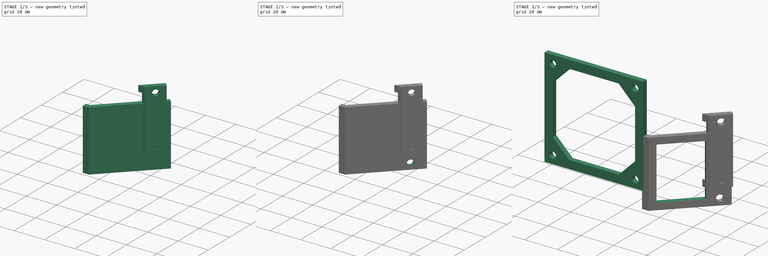
[diagram: build sequence overview — one tinted view per stage of 3, left to right]
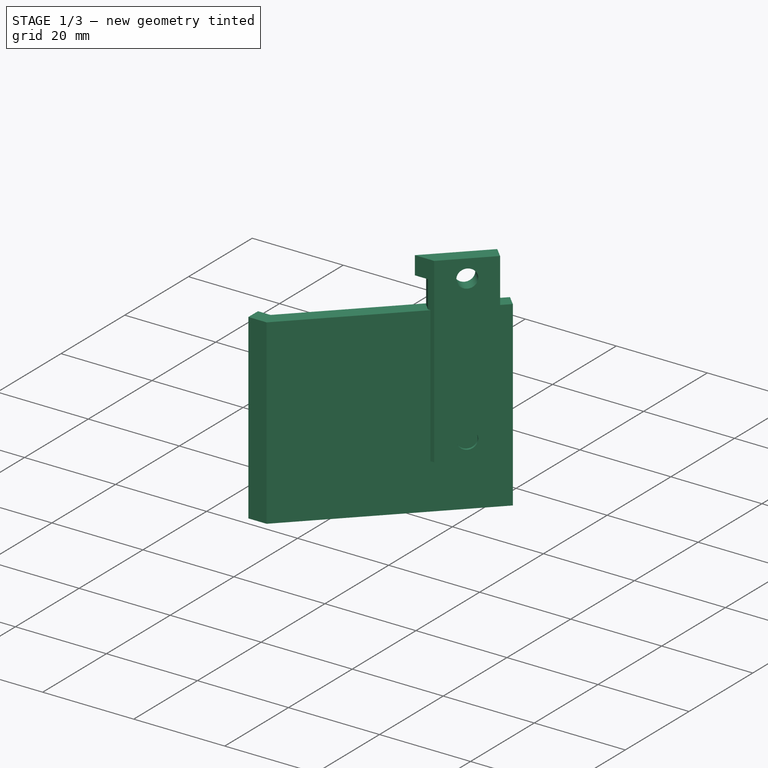
[diagram: stage 1 of 3 — iso view after this stage's code; geometry added in this stage tinted green]
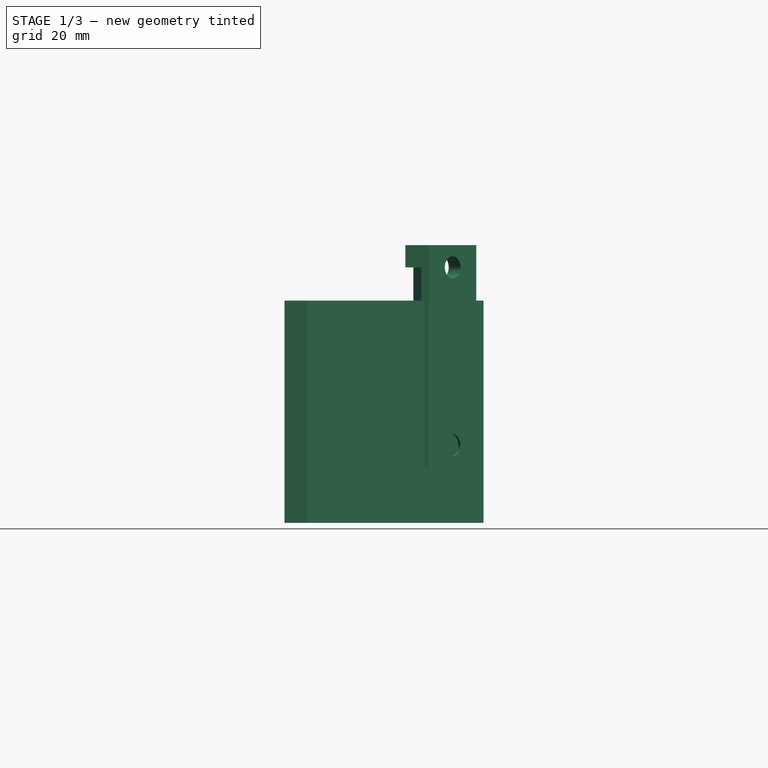
[diagram: stage 1 of 3 — front view after this stage's code; geometry added in this stage tinted green]
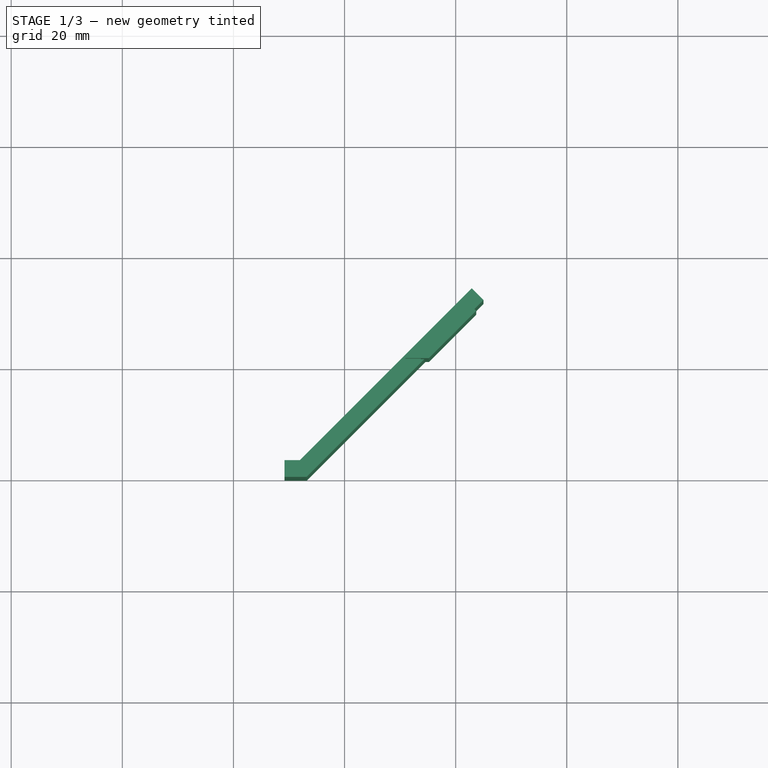
[diagram: stage 1 of 3 — top view after this stage's code; geometry added in this stage tinted green]
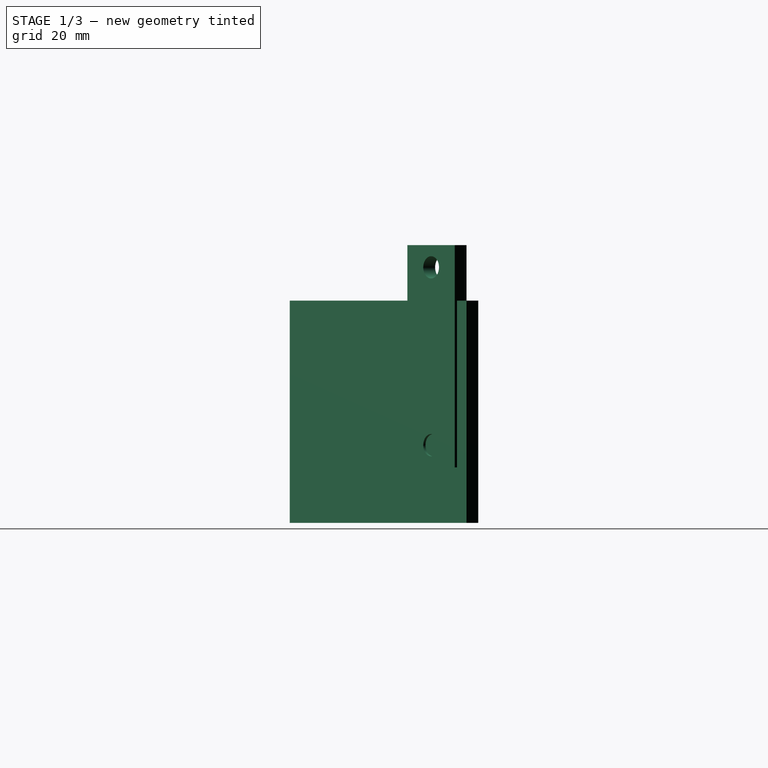
[diagram: stage 1 of 3 — right view after this stage's code; geometry added in this stage tinted green]
FCSTD DOCUMENT  (FreeCAD 0.16R)
Label: soporte ventilador
License: All rights reserved
LicenseURL: http://en.wikipedia.org/wiki/All_rights_reserved
objects: Sketcher::SketchObject×5, PartDesign::Pocket×3, PartDesign::Pad×2, Part::Feature×2
note: 17 computed .brp shape members not serialized (recipe doc carries the construction recipe); baked Part::Feature solids carry a one-line shape summary decoded from their .brp

FEATURE [Sketcher::SketchObject] Sketch001
  sketch-geometry (6):
    g0: LineSegment StartX=33.191 StartY=0 StartZ=0 EndX=65.0108 EndY=31.8198 EndZ=0
    g1: LineSegment StartX=65.0108 StartY=31.8198 StartZ=0 EndX=62.8895 EndY=33.9411 EndZ=0
    g2: LineSegment StartX=62.8895 StartY=33.9411 StartZ=0 EndX=31.9484 EndY=3 EndZ=0
    g3: LineSegment StartX=29.191 StartY=3 StartZ=0 EndX=31.9484 EndY=3 EndZ=0
    g4: LineSegment StartX=33.191 StartY=0 StartZ=0 EndX=29.191 EndY=0 EndZ=0
    g5: LineSegment StartX=29.191 StartY=0 StartZ=0 EndX=29.191 EndY=3 EndZ=0
  constraints (15):
    c: PointOnObject(g0,g-1)
    c: Coincident(g0,g1)
    c: Coincident(g1,g2)
    c: Distance(g1) = 3
    c: Perpendicular(g1,g0)
    c: Angle(g0,g-1) = 2.35619
    c: Coincident(g4,g5)
    c: Coincident(g5,g3)
    c: Horizontal(g3)
    c: Horizontal(g4)
    c: Vertical(g5)
    c: DistanceY(g5,g5) = 3
    c: PointOnObject(g4,g-1)
    c: DistanceX(g4,g4) = 4
    c: Coincident(g3,g2)
FEATURE [PartDesign::Pad] Pad001
  Length = 40
  Length2 = 100
  Reversed = true
  Sketch = -> Sketch001
  Type = 0
FEATURE [Part::Feature] Pocket002
  Placement = pos=(0.808979,0,10) rot=(0,0,1;0rad)
  shape: bbox 33.7 x 31.82 x 40 mm, 14 faces (baked)
FEATURE [Sketcher::SketchObject] Sketch004
  Placement = pos=(0.808979,0,-30) rot=(1,0,0;3.14159rad)
  Support = -> Pocket002 [Face4]
  sketch-geometry (4):
    g0: LineSegment StartX=57.4132 StartY=-21.1826 StartZ=0 EndX=20.6394 EndY=-21.1826 EndZ=0
    g1: LineSegment StartX=20.6394 StartY=-21.1826 StartZ=0 EndX=20.6394 EndY=7.33497 EndZ=0
    g2: LineSegment StartX=20.6394 StartY=7.33497 StartZ=0 EndX=57.4132 EndY=7.33497 EndZ=0
    g3: LineSegment StartX=57.4132 StartY=7.33497 StartZ=0 EndX=57.4132 EndY=-21.1826 EndZ=0
  constraints (8):
    c: Coincident(g0,g1)
    c: Coincident(g1,g2)
    c: Coincident(g2,g3)
    c: Coincident(g3,g0)
    c: Horizontal(g0)
    c: Horizontal(g2)
    c: Vertical(g1)
    c: Vertical(g3)
FEATURE [Part::Feature] Fusion001
  shape: bbox 69.76 x 10.64 x 60 mm, 32 faces (baked)
FEATURE [PartDesign::Pocket] Pocket003
  Length = 5
  Placement = pos=(0.808979,0,10) rot=(0,0,1;0rad)
  Sketch = -> Sketch004
  Type = 1
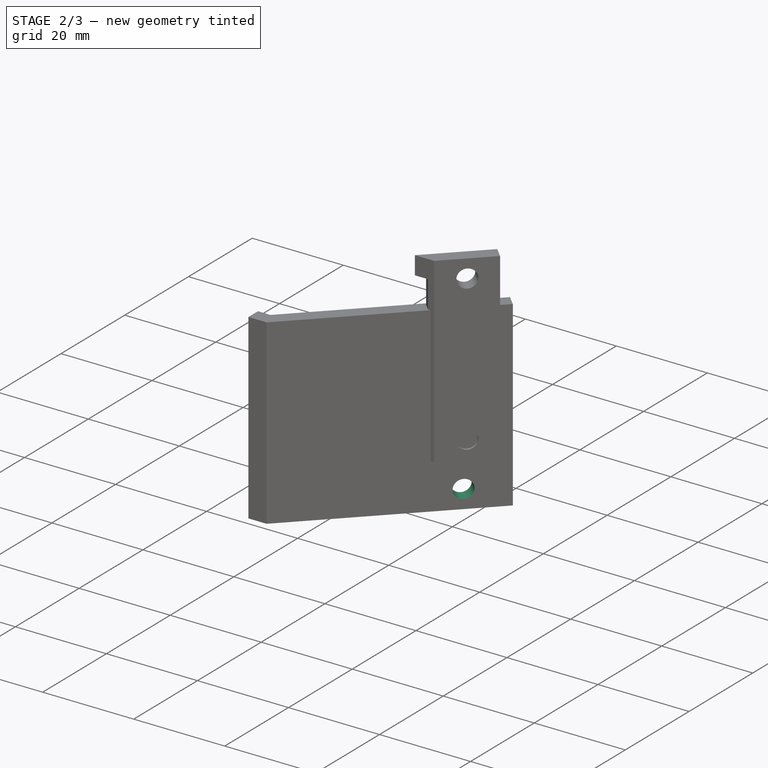
[diagram: stage 2 of 3 — iso view after this stage's code; geometry added in this stage tinted green]
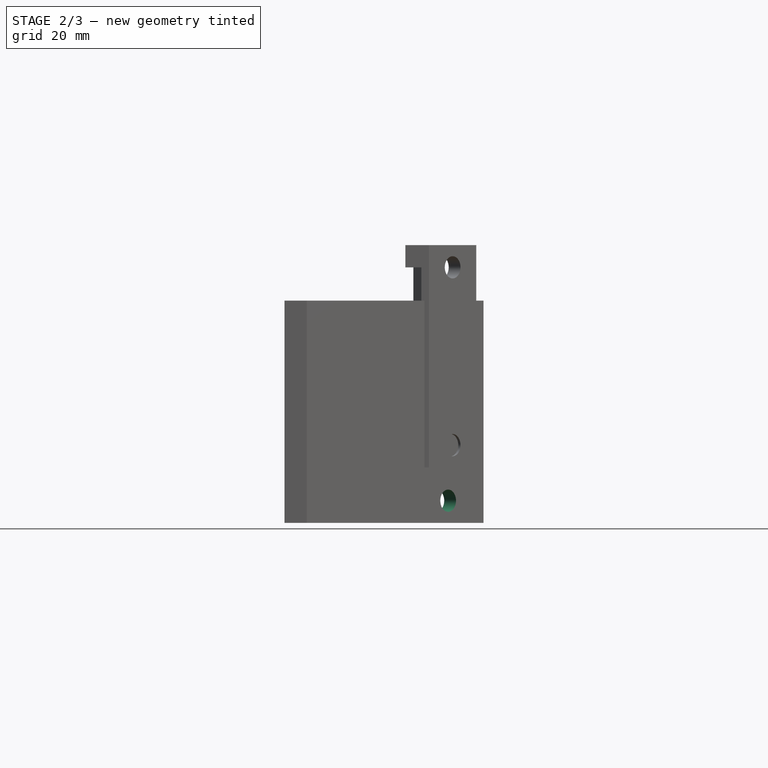
[diagram: stage 2 of 3 — front view after this stage's code; geometry added in this stage tinted green]
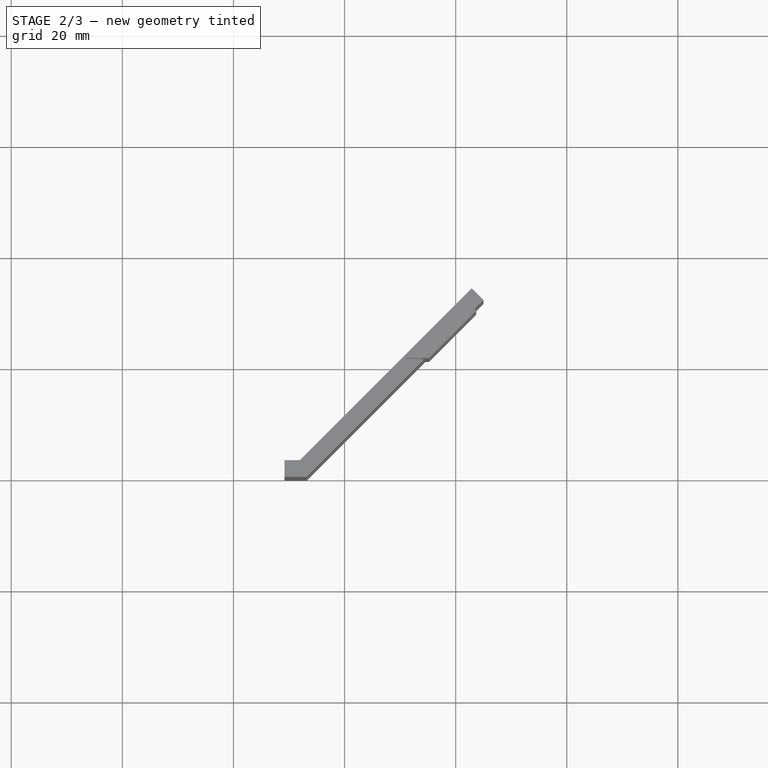
[diagram: stage 2 of 3 — top view after this stage's code; geometry added in this stage tinted green]
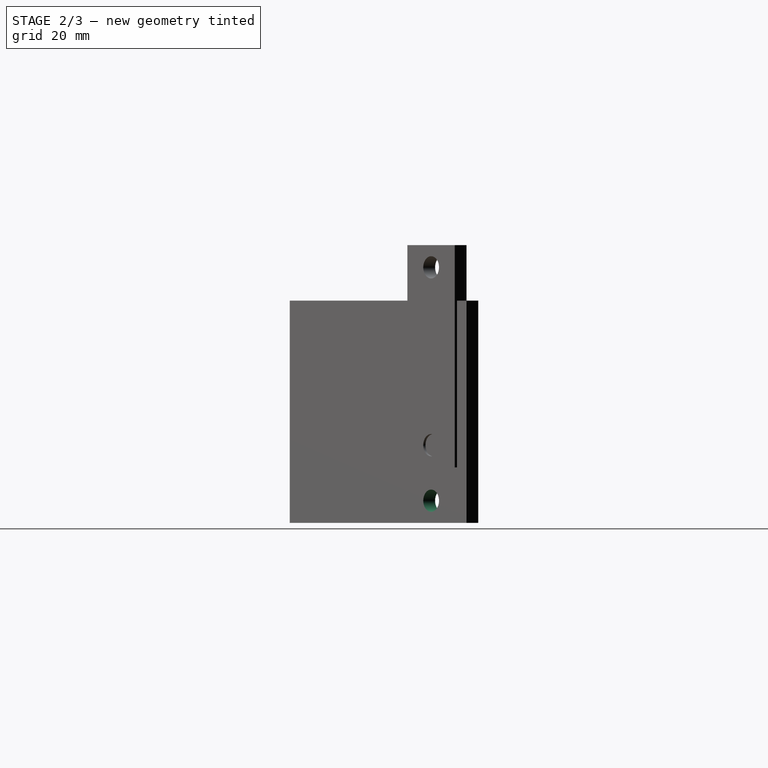
[diagram: stage 2 of 3 — right view after this stage's code; geometry added in this stage tinted green]
FEATURE [Sketcher::SketchObject] Sketch002
  ExternalGeometry = -> [Pad001]
  Placement = pos=(16.5955,-16.5955,0) rot=(0.862856,0.357407,0.357407;1.71777rad)
  Support = -> Pad001 [Face1]
  sketch-geometry (2):
    g0: Circle CenterX=59.4696 CenterY=-36 CenterZ=0 NormalX=0 NormalY=0 NormalZ=1 Radius=2
    g1: Circle CenterX=59.4696 CenterY=-4 CenterZ=0 NormalX=0 NormalY=0 NormalZ=1 Radius=2
  constraints (6):
    c: DistanceX(g-3,g1) = 36
    c: DistanceX(g-3,g0) = 36
    c: Radius(g1) = 2
    c: Equal(g1,g0)
    c: DistanceY(g0,g1) = 32
    c: DistanceY(g-3,g0) = 4
FEATURE [PartDesign::Pocket] Pocket
  Length = 5
  Sketch = -> Sketch002
  Type = 0
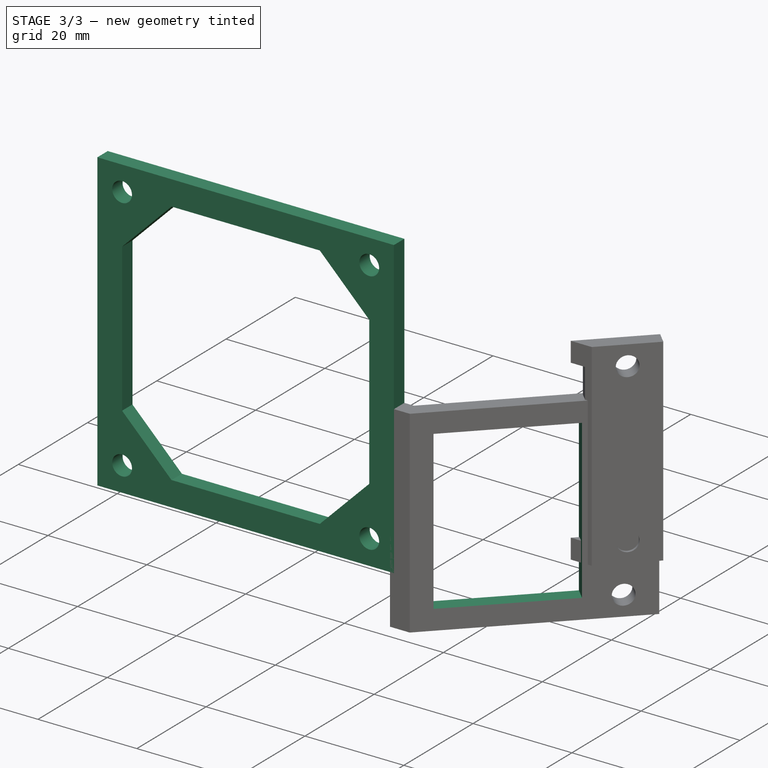
[diagram: stage 3 of 3 — iso view after this stage's code; geometry added in this stage tinted green]
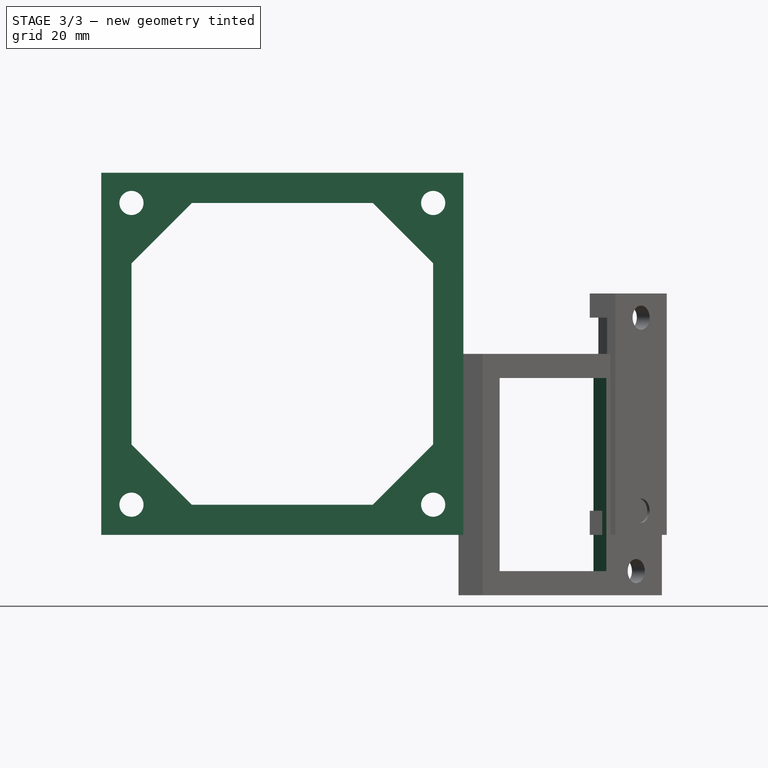
[diagram: stage 3 of 3 — front view after this stage's code; geometry added in this stage tinted green]
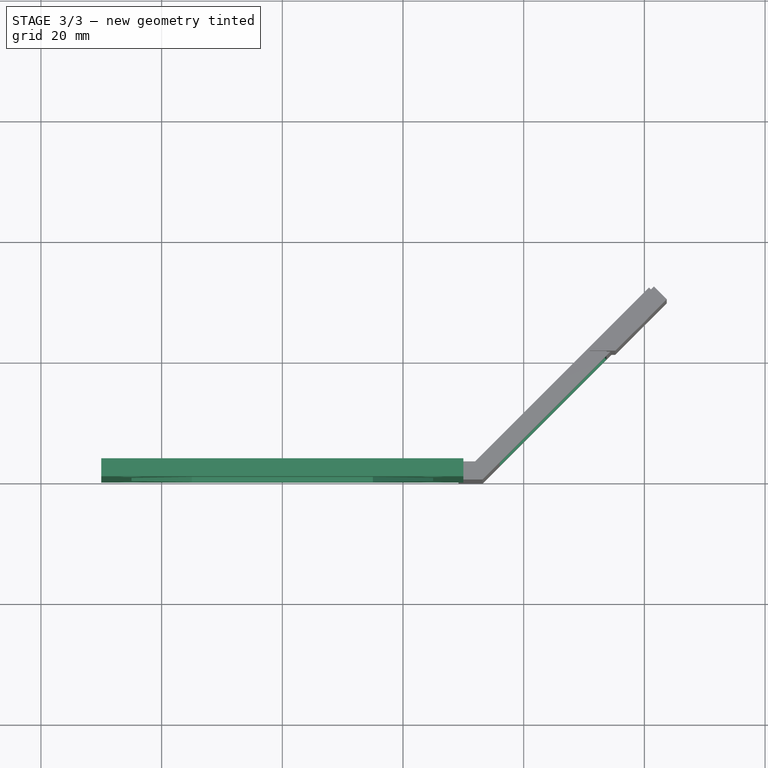
[diagram: stage 3 of 3 — top view after this stage's code; geometry added in this stage tinted green]
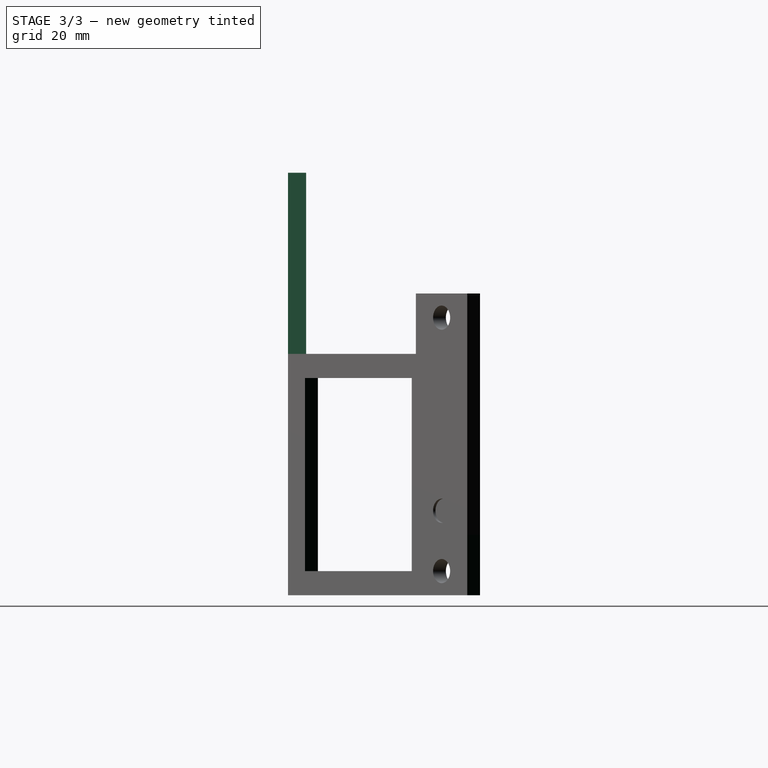
[diagram: stage 3 of 3 — right view after this stage's code; geometry added in this stage tinted green]
FEATURE [Sketcher::SketchObject] Sketch
  Placement = pos=(0,0,0) rot=(-1,0,0;4.71239rad)
  sketch-geometry (24):
    g0: LineSegment StartX=-30 StartY=30 StartZ=0 EndX=30 EndY=30 EndZ=0
    g1: LineSegment StartX=30 StartY=30 StartZ=0 EndX=30 EndY=-30 EndZ=0
    g2: LineSegment StartX=30 StartY=-30 StartZ=0 EndX=-30 EndY=-30 EndZ=0
    g3: LineSegment StartX=-30 StartY=-30 StartZ=0 EndX=-30 EndY=30 EndZ=0
    g4: LineSegment StartX=-15 StartY=25 StartZ=0 EndX=15 EndY=25 EndZ=0
    g5: LineSegment StartX=25 StartY=15 StartZ=0 EndX=25 EndY=-15 EndZ=0
    g6: LineSegment StartX=15 StartY=-25 StartZ=0 EndX=-15 EndY=-25 EndZ=0
    g7: LineSegment StartX=-25 StartY=-15 StartZ=0 EndX=-25 EndY=15 EndZ=0
    g8: LineSegment [constr] StartX=-15 StartY=25 StartZ=0 EndX=15 EndY=25 EndZ=0
    g9: LineSegment [constr] StartX=15 StartY=25 StartZ=0 EndX=15 EndY=-25 EndZ=0
    g10: LineSegment [constr] StartX=15 StartY=-25 StartZ=0 EndX=-15 EndY=-25 EndZ=0
    g11: LineSegment [constr] StartX=-15 StartY=-25 StartZ=0 EndX=-15 EndY=25 EndZ=0
    g12: LineSegment [constr] StartX=-25 StartY=15 StartZ=0 EndX=25 EndY=15 EndZ=0
    g13: LineSegment [constr] StartX=25 StartY=15 StartZ=0 EndX=25 EndY=-15 EndZ=0
    g14: LineSegment [constr] StartX=25 StartY=-15 StartZ=0 EndX=-25 EndY=-15 EndZ=0
    g15: LineSegment [constr] StartX=-25 StartY=-15 StartZ=0 EndX=-25 EndY=15 EndZ=0
    g16: LineSegment StartX=15 StartY=25 StartZ=0 EndX=25 EndY=15 EndZ=0
    g17: LineSegment StartX=-15 StartY=25 StartZ=0 EndX=-25 EndY=15 EndZ=0
    g18: LineSegment StartX=-25 StartY=-15 StartZ=0 EndX=-15 EndY=-25 EndZ=0
    g19: LineSegment StartX=25 StartY=-15 StartZ=0 EndX=15 EndY=-25 EndZ=0
    g20: Circle CenterX=25 CenterY=25 CenterZ=0 NormalX=0 NormalY=0 NormalZ=1 Radius=2
    g21: Circle CenterX=25 CenterY=-25 CenterZ=0 NormalX=0 NormalY=0 NormalZ=1 Radius=2
    g22: Circle CenterX=-25 CenterY=-25 CenterZ=0 NormalX=0 NormalY=0 NormalZ=1 Radius=2
    g23: Circle CenterX=-25 CenterY=25 CenterZ=0 NormalX=0 NormalY=0 NormalZ=1 Radius=2
  constraints (68):
    c: Coincident(g0,g1)
    c: Coincident(g1,g2)
    c: Coincident(g2,g3)
    c: Coincident(g3,g0)
    c: Horizontal(g0)
    c: Horizontal(g2)
    c: Vertical(g1)
    c: Vertical(g3)
    c: DistanceX(g0,g0) = 60
    c: DistanceY(g3,g3) = 60
    c: Symmetric(g0,g0,g-2)
    c: Symmetric(g2,g0,g-1)
    c: Horizontal(g4)
    c: Horizontal(g6)
    c: Vertical(g5)
    c: Vertical(g7)
    c: Coincident(g8,g9)
    c: Coincident(g9,g10)
    c: Coincident(g10,g11)
    c: Coincident(g11,g8)
    c: Horizontal(g8)
    c: Horizontal(g10)
    c: Vertical(g9)
    c: Vertical(g11)
    c: DistanceY(g11,g11) = 50
    c: Symmetric(g10,g8,g-1)
    c: Symmetric(g8,g8,g-2)
    c: DistanceX(g8,g8) = 30
    c: Coincident(g12,g13)
    c: Coincident(g13,g14)
    c: Coincident(g14,g15)
    c: Coincident(g15,g12)
    c: Horizontal(g12)
    c: Horizontal(g14)
    c: Vertical(g13)
    c: Vertical(g15)
    c: DistanceX(g12,g12) = 50
    c: DistanceY(g15,g15) = 30
    c: Symmetric(g13,g14,g-2)
    c: Symmetric(g14,g12,g-1)
    c: Coincident(g16,g8)
    c: Coincident(g16,g12)
    c: Coincident(g17,g8)
    c: Coincident(g17,g12)
    c: Coincident(g18,g14)
    c: Coincident(g18,g10)
    c: Coincident(g19,g13)
    c: Coincident(g19,g9)
    c: PointOnObject(g5,g12)
    c: PointOnObject(g4,g9)
    c: PointOnObject(g4,g11)
    c: PointOnObject(g7,g12)
    c: PointOnObject(g7,g14)
    c: PointOnObject(g6,g11)
    c: PointOnObject(g6,g9)
    c: PointOnObject(g5,g14)
    c: Radius(g23) = 2
    c: Equal(g23,g22)
    c: Equal(g23,g21)
    c: Equal(g23,g20)
    c: DistanceY(g20,g0) = 5
    c: DistanceX(g20,g0) = 5
    c: DistanceX(g0,g23) = 5
    c: DistanceY(g23,g0) = 5
    c: DistanceX(g21,g1) = 5
    c: DistanceY(g1,g21) = 5
    c: DistanceX(g2,g22) = 5
    c: DistanceY(g2,g22) = 5
FEATURE [PartDesign::Pad] Pad
  Length = 3
  Length2 = 100
  Placement = pos=(0,0,0) rot=(-1,0,0;4.71239rad)
  Reversed = true
  Sketch = -> Sketch
  Type = 0
FEATURE [Sketcher::SketchObject] Sketch003
  ExternalGeometry = -> [Pocket]
  Placement = pos=(16.5955,-16.5955,0) rot=(0.862856,0.357407,0.357407;1.71777rad)
  Support = -> Pocket [Face1]
  sketch-geometry (8):
    g0: LineSegment StartX=65.4696 StartY=8.92908 StartZ=0 EndX=80.3442 EndY=8.92908 EndZ=0
    g1: LineSegment StartX=80.3442 StartY=8.92908 StartZ=0 EndX=80.3442 EndY=-42.2384 EndZ=0
    g2: LineSegment StartX=80.3442 StartY=-42.2384 StartZ=0 EndX=65.4696 EndY=-42.2384 EndZ=0
    g3: LineSegment StartX=65.4696 StartY=-42.2384 StartZ=0 EndX=65.4696 EndY=8.92908 EndZ=0
    g4: LineSegment StartX=27.4696 StartY=-4 StartZ=0 EndX=52.4696 EndY=-4 EndZ=0
    g5: LineSegment StartX=52.4696 StartY=-4 StartZ=0 EndX=52.4696 EndY=-36 EndZ=0
    g6: LineSegment StartX=52.4696 StartY=-36 StartZ=0 EndX=27.4696 EndY=-36 EndZ=0
    g7: LineSegment StartX=27.4696 StartY=-36 StartZ=0 EndX=27.4696 EndY=-4 EndZ=0
  constraints (21):
    c: Coincident(g0,g1)
    c: Coincident(g1,g2)
    c: Coincident(g2,g3)
    c: Coincident(g3,g0)
    c: Horizontal(g0)
    c: Horizontal(g2)
    c: Vertical(g1)
    c: Vertical(g3)
    c: Coincident(g4,g5)
    c: Coincident(g5,g6)
    c: Coincident(g6,g7)
    c: Coincident(g7,g4)
    c: Horizontal(g4)
    c: Horizontal(g6)
    c: Vertical(g5)
    c: Vertical(g7)
    c: DistanceX(g0,g-4) = 3
    c: DistanceX(g-3,g6) = 4
    c: DistanceY(g-3,g6) = 4
    c: DistanceY(g4,g-1) = 4
    c: DistanceX(g4,g-4) = 16
FEATURE [PartDesign::Pocket] Pocket001
  Length = 5
  Sketch = -> Sketch003
  Type = 0
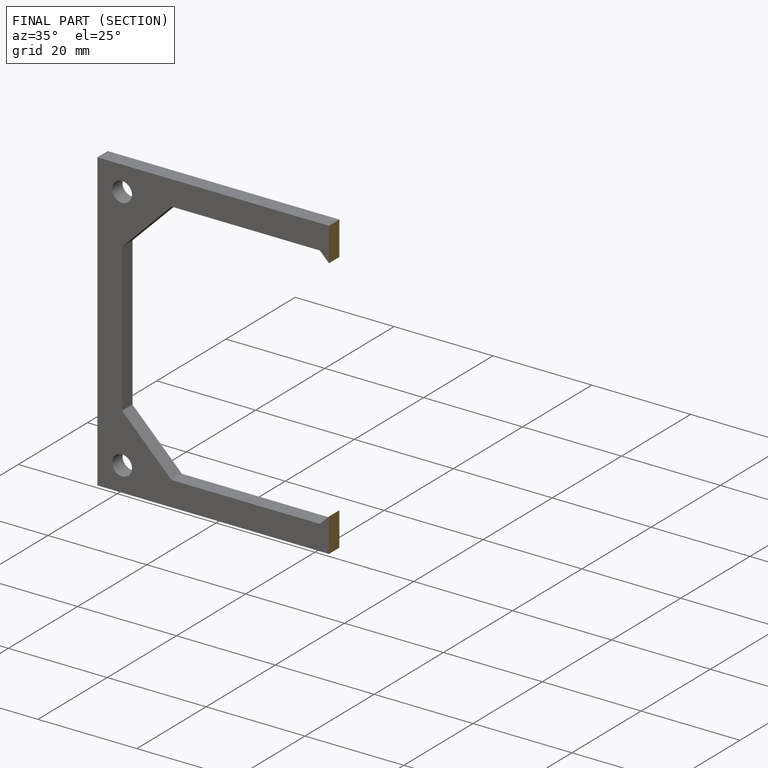
[diagram: finished part — half-section view (interior)]
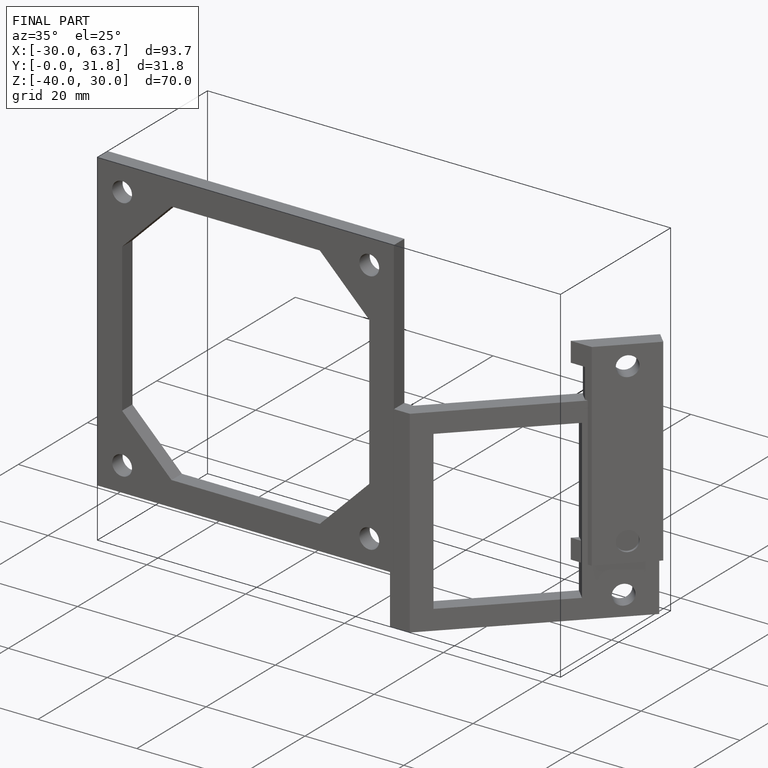
[diagram: finished part — iso view with bounding-box wireframe]
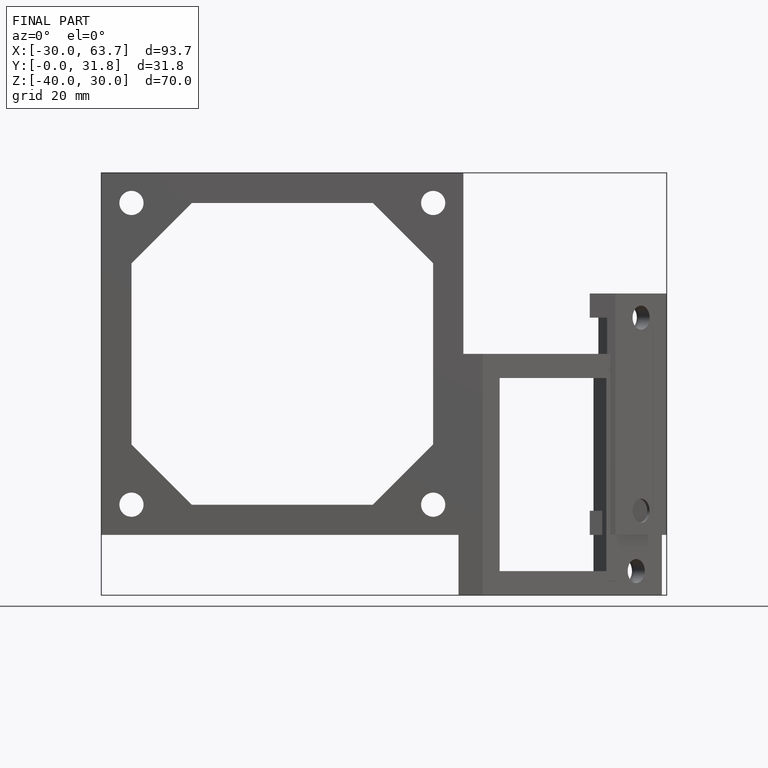
[diagram: finished part — front view with bounding-box wireframe]
